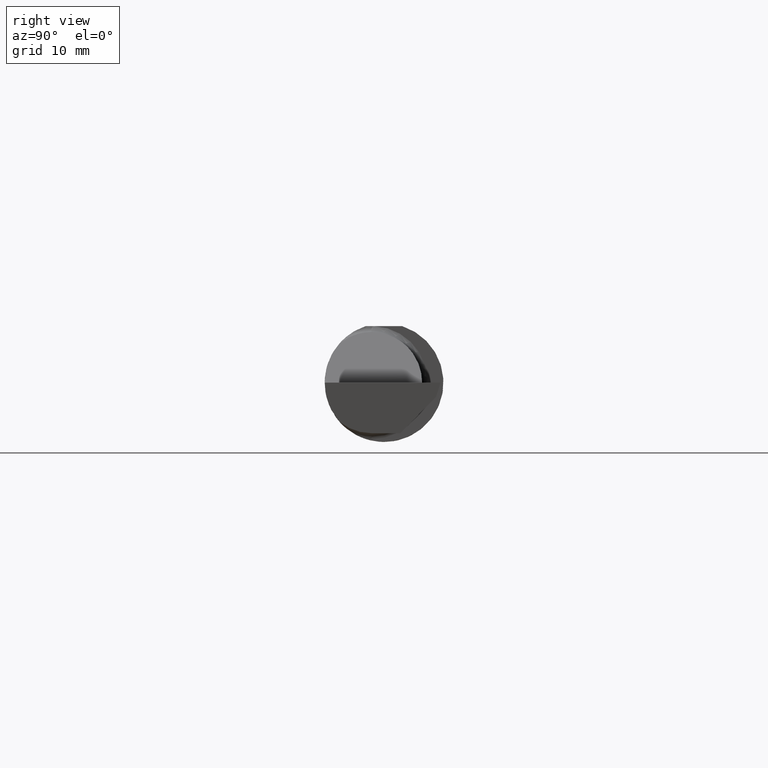
[diagram: clean part render]
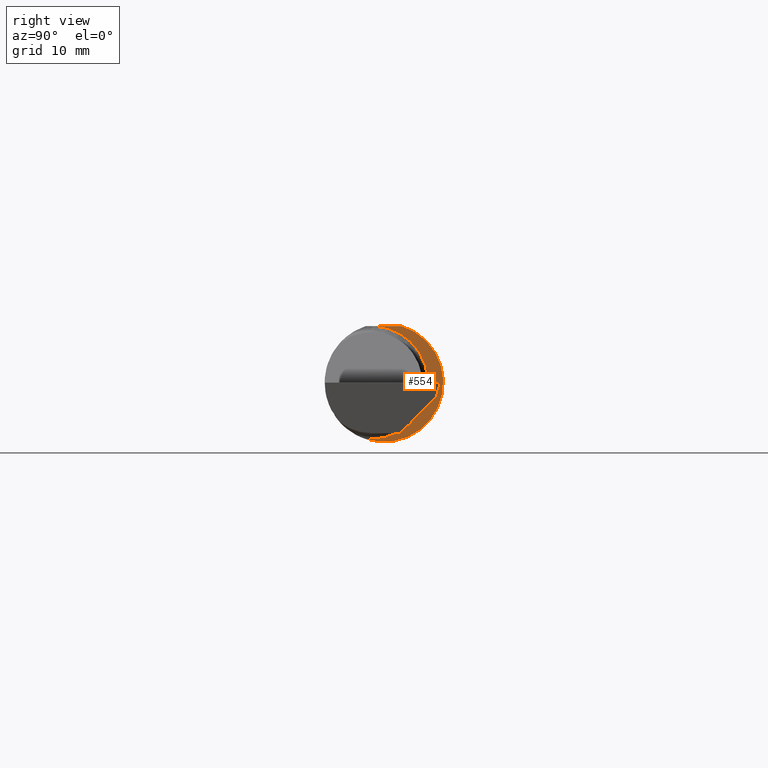
[diagram: same view with one face highlighted and labeled with its STEP entity id]
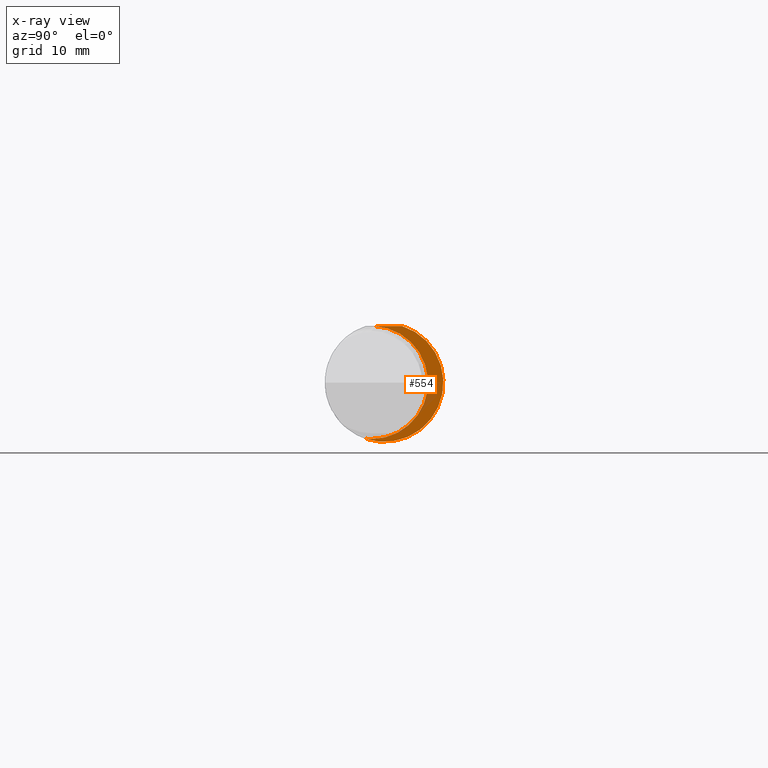
[diagram: x-ray of the same camera — body ghosted, the highlighted face saturated]
A machine part, right view. The second image highlights one B-rep face of the part: STEP entity #554.
The next image is the same camera in x-ray: the body ghosted, the highlighted face saturated — about 13% of this face is hidden behind the body in this view.
In plain terms, the highlighted planar face has unit normal (1, 0, 0).
Its self-contained STEP definition (entity closure, byte-faithful):
#6 = CARTESIAN_POINT ( 'NONE',  ( 1.950000000000000178, -0.05299999999999998462, 0.000000000000000000 ) ) ;
#18 = DIRECTION ( 'NONE',  ( 0.000000000000000000, 0.000000000000000000, 1.000000000000000000 ) ) ;
#25 = CARTESIAN_POINT ( 'NONE',  ( 1.950000000000000178, 0.1851499999999999257, 0.000000000000000000 ) ) ;
#35 = AXIS2_PLACEMENT_3D ( 'NONE', #25, #224, #472 ) ;
#41 = VERTEX_POINT ( 'NONE', #649 ) ;
#80 = DIRECTION ( 'NONE',  ( -1.000000000000000000, -0.000000000000000000, -0.000000000000000000 ) ) ;
#85 = DIRECTION ( 'NONE',  ( -1.000000000000000000, -0.000000000000000000, -0.000000000000000000 ) ) ;
#117 = CARTESIAN_POINT ( 'NONE',  ( 1.950000000000000178, -0.04105010460296977526, 0.2378500000000000059 ) ) ;
#188 = ORIENTED_EDGE ( 'NONE', *, *, #222, .T. ) ;
#200 = DIRECTION ( 'NONE',  ( 0.000000000000000000, 0.000000000000000000, 1.000000000000000000 ) ) ;
#205 = CARTESIAN_POINT ( 'NONE',  ( 1.950000000000000178, 0.07650098038587503646, 0.2378500000000000059 ) ) ;
#222 = EDGE_CURVE ( 'NONE', #654, #348, #573, .T. ) ;
#224 = DIRECTION ( 'NONE',  ( 1.000000000000000000, 0.000000000000000000, 0.000000000000000000 ) ) ;
#237 = VERTEX_POINT ( 'NONE', #117 ) ;
#240 = AXIS2_PLACEMENT_3D ( 'NONE', #492, #672, #728 ) ;
#245 = EDGE_LOOP ( 'NONE', ( #188, #673, #359, #791 ) ) ;
#288 = EDGE_CURVE ( 'NONE', #41, #654, #664, .T. ) ;
#293 = PLANE ( 'NONE',  #35 ) ;
#316 = LINE ( 'NONE', #550, #428 ) ;
#348 = VERTEX_POINT ( 'NONE', #205 ) ;
#357 = EDGE_CURVE ( 'NONE', #237, #41, #612, .T. ) ;
#359 = ORIENTED_EDGE ( 'NONE', *, *, #357, .T. ) ;
#377 = CARTESIAN_POINT ( 'NONE',  ( 1.950000000000000178, -0.05299999999999998462, 0.000000000000000000 ) ) ;
#419 = CARTESIAN_POINT ( 'NONE',  ( 1.950000000000000178, -0.08036415094339657839, -0.2365726648265749632 ) ) ;
#428 = VECTOR ( 'NONE', #547, 39.37007874015748143 ) ;
#456 = AXIS2_PLACEMENT_3D ( 'NONE', #377, #85, #200 ) ;
#472 = DIRECTION ( 'NONE',  ( 0.000000000000000000, 0.000000000000000000, -1.000000000000000000 ) ) ;
#492 = CARTESIAN_POINT ( 'NONE',  ( 1.950000000000000178, 0.000000000000000000, 0.000000000000000000 ) ) ;
#547 = DIRECTION ( 'NONE',  ( 0.000000000000000000, -1.000000000000000000, 1.138839417068644240E-16 ) ) ;
#550 = CARTESIAN_POINT ( 'NONE',  ( 1.950000000000000178, 0.2998500000000000609, 0.2378499999999999504 ) ) ;
#554 = ADVANCED_FACE ( 'NONE', ( #638 ), #293, .T. ) ;
#573 = CIRCLE ( 'NONE', #240, 0.2498499999999999888 ) ;
#612 = CIRCLE ( 'NONE', #717, 0.2381499999999999173 ) ;
#630 = EDGE_CURVE ( 'NONE', #348, #237, #316, .T. ) ;
#638 = FACE_OUTER_BOUND ( 'NONE', #245, .T. ) ;
#649 = CARTESIAN_POINT ( 'NONE',  ( 1.950000000000000178, -0.05299999999999996381, -0.2381499999999999173 ) ) ;
#654 = VERTEX_POINT ( 'NONE', #419 ) ;
#664 = CIRCLE ( 'NONE', #456, 0.2381499999999999173 ) ;
#672 = DIRECTION ( 'NONE',  ( 1.000000000000000000, 0.000000000000000000, 0.000000000000000000 ) ) ;
#673 = ORIENTED_EDGE ( 'NONE', *, *, #630, .T. ) ;
#717 = AXIS2_PLACEMENT_3D ( 'NONE', #6, #80, #18 ) ;
#728 = DIRECTION ( 'NONE',  ( 0.000000000000000000, 0.000000000000000000, -1.000000000000000000 ) ) ;
#791 = ORIENTED_EDGE ( 'NONE', *, *, #288, .T. ) ;